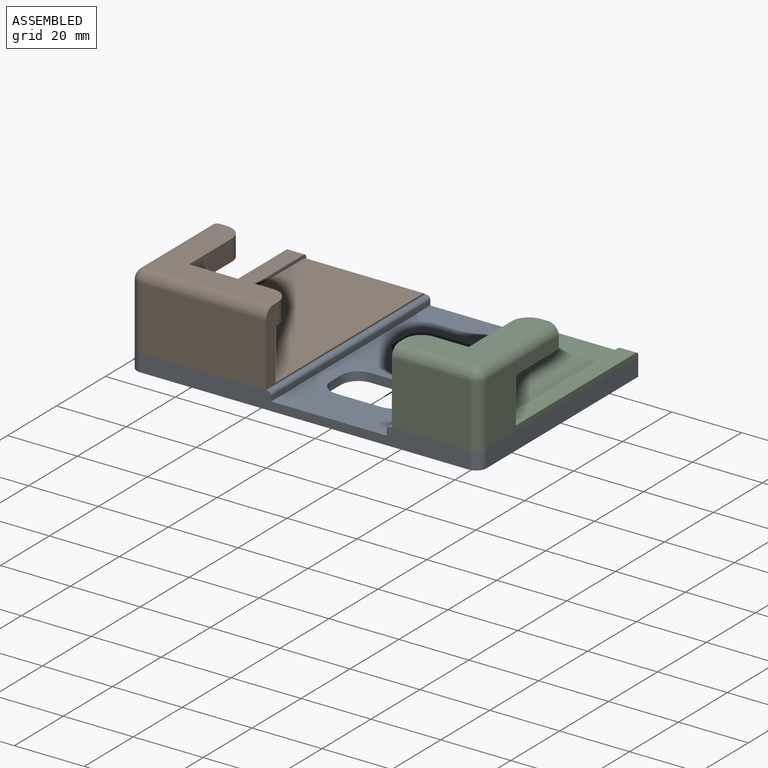
[diagram: assembled view]
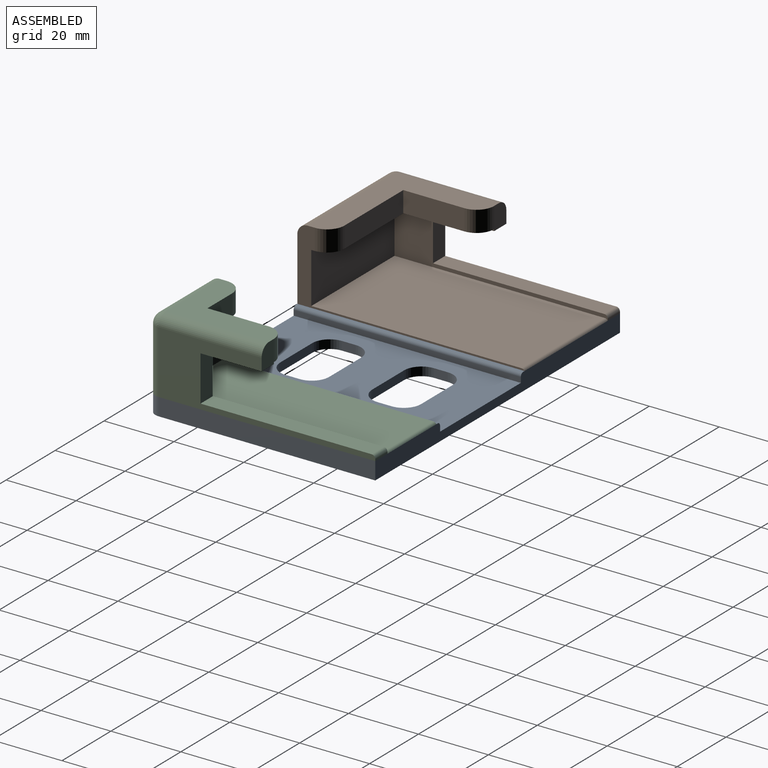
[diagram: assembled view, second angle]
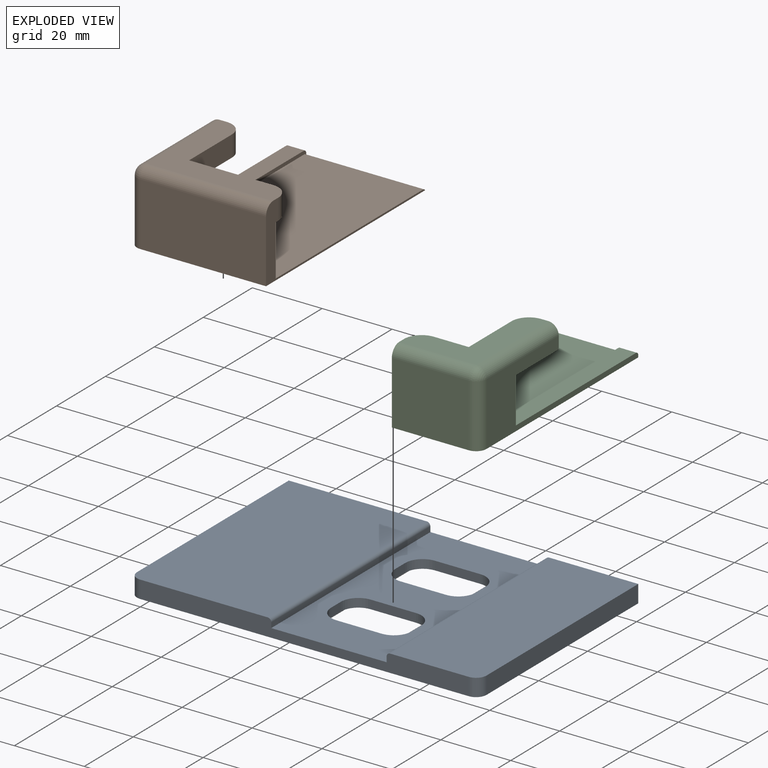
[diagram: exploded view]
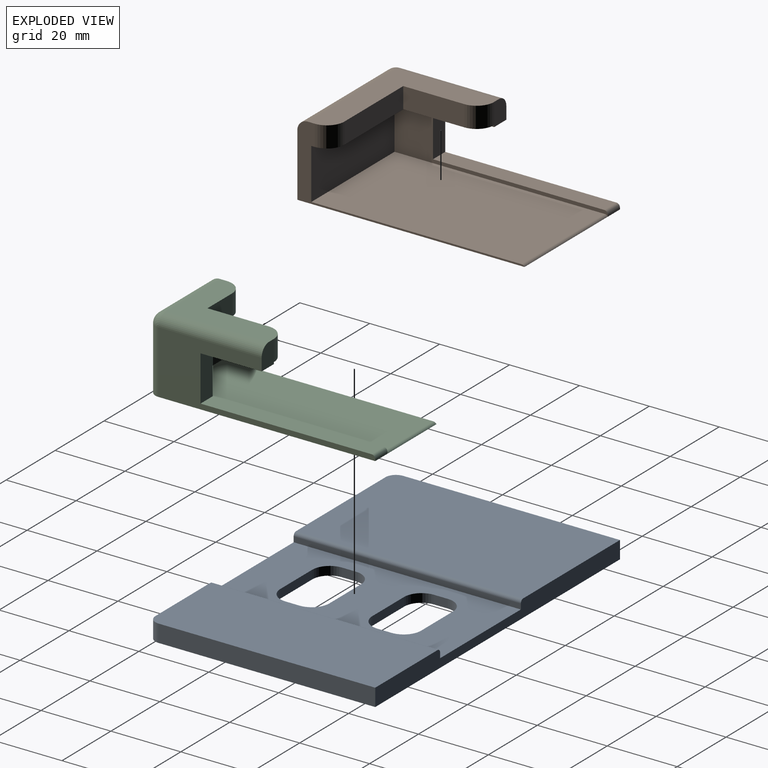
[diagram: exploded view, second angle]
ASSEMBLY  parts=3 mates=3
PART A: 30 faces, bbox 100x65x5 mm
  f0: plane 100x65mm, normal (0,0,1), area 5895.1mm2, adj f7,f8,f9,f11,f12,f13,f14,f15
  f1: plane 65x33mm, normal (0,0,-1), area 1543.9mm2, adj f2,f3,f8,f11,f12,f13,f14,f15
  f2: plane 65x1.5mm, normal (1,0,0), area 97.5mm2, adj f1,f4,f8,f27
  f3: plane 65x1.5mm, normal (-1,0,0), area 97.5mm2, adj f1,f5,f8,f27
  f4: cylinder r=1mm len=65mm, axis (0,1,0), area 102.1mm2, adj f2,f6,f8,f27
  f5: cylinder r=1mm len=65mm, axis (0,-1,0), area 102.1mm2, adj f3,f8,f10,f27
  f6: plane 65x25.5mm, normal (0,0,-1), area 1655.6mm2, adj f4,f7,f8,f27,f28
  f7: plane 62x5mm, normal (-1,0,0), area 310mm2, adj f0,f6,f27,f28
  f8: plane 94x5mm, normal (0,-1,0), area 387.1mm2, adj f0,f1,f2,f3,f4,f5,f6,f10
  f9: plane 62x5mm, normal (1,0,0), area 310mm2, adj f0,f10,f27,f29
  f10: plane 65x39.5mm, normal (0,0,-1), area 2565.6mm2, adj f5,f8,f9,f27,f29
  f11: plane 4x2.5mm, normal (1,0,0), area 10mm2, adj f0,f1,f12,f18
  f12: cylinder r=5mm len=5mm, axis (0,0,-1), area 19.6mm2, adj f0,f1,f11,f13
  f13: plane 13x2.5mm, normal (0,-1,0), area 32.5mm2, adj f0,f1,f12,f14
  f14: cylinder r=5mm len=5mm, axis (0,0,-1), area 19.6mm2, adj f0,f1,f13,f15
  f15: plane 4x2.5mm, normal (-1,0,0), area 10mm2, adj f0,f1,f14,f16
  f16: cylinder r=5mm len=5mm, axis (0,0,-1), area 19.6mm2, adj f0,f1,f15,f17
  f17: plane 13x2.5mm, normal (0,1,0), area 32.5mm2, adj f0,f1,f16,f18
  f18: cylinder r=5mm len=5mm, axis (0,0,-1), area 19.6mm2, adj f0,f1,f11,f17
  f19: plane 4x2.5mm, normal (1,0,0), area 10mm2, adj f0,f1,f20,f26
  f20: cylinder r=5mm len=5mm, axis (0,0,-1), area 19.6mm2, adj f0,f1,f19,f21
  f21: plane 13x2.5mm, normal (0,-1,0), area 32.5mm2, adj f0,f1,f20,f22
  f22: cylinder r=5mm len=5mm, axis (0,0,-1), area 19.6mm2, adj f0,f1,f21,f23
  f23: plane 4x2.5mm, normal (-1,0,0), area 10mm2, adj f0,f1,f22,f24
  f24: cylinder r=5mm len=5mm, axis (0,0,-1), area 19.6mm2, adj f0,f1,f23,f25
  f25: plane 13x2.5mm, normal (0,1,0), area 32.5mm2, adj f0,f1,f24,f26
  f26: cylinder r=5mm len=5mm, axis (0,0,-1), area 19.6mm2, adj f0,f1,f19,f25
  f27: plane 100x5mm, normal (0,1,0), area 417.1mm2, adj f0,f1,f2,f3,f4,f5,f6,f7
  f28: cylinder r=3mm len=5mm, axis (0,0,-1), area 23.6mm2, adj f0,f6,f7,f8
  f29: cylinder r=3mm len=5mm, axis (0,0,1), area 23.6mm2, adj f0,f8,f9,f10
PART B: 24 faces, bbox 39x65x21 mm
  f0: plane 5x0.5mm, normal (0,1,0), area 2.5mm2, adj f7,f8,f17,f18
  f1: plane 65x21mm, normal (1,0,0), area 118.4mm2, adj f3,f4,f5,f6,f10,f16,f17,f19
  f2: plane 24x6mm, normal (0,1,0), area 144mm2, adj f3,f5,f9,f16
  f3: plane 36x29.5mm, normal (0,0,1), area 398.8mm2, adj f1,f2,f9,f14,f15,f16,f20,f21
  f4: plane 60.13x34mm, normal (0,0,1), area 2044.6mm2, adj f1,f6,f8,f19
  f5: plane 34x28.5mm, normal (0,0,-1), area 305.8mm2, adj f1,f2,f6,f8,f9,f15,f16
  f6: plane 34x14.5mm, normal (0,1,0), area 493mm2, adj f1,f4,f5,f8
  f7: plane 62x18mm, normal (-1,0,0), area 352mm2, adj f0,f11,f12,f13,f14,f17,f18,f20
  f8: plane 61x15mm, normal (1,0,0), area 218.2mm2, adj f0,f4,f5,f6,f11,f12,f13,f14
  f9: plane 17.5x6mm, normal (1,0,0), area 105mm2, adj f2,f3,f5,f15
  f10: plane 36x18mm, normal (0,-1,0), area 648mm2, adj f1,f17,f21,f23
  f11: plane 13x5mm, normal (0,1,0), area 65mm2, adj f7,f8,f12,f13
  f12: plane 49x5mm, normal (0,0,1), area 245mm2, adj f7,f8,f11,f18
  f13: plane 17.5x5mm, normal (0,0,-1), area 87.5mm2, adj f7,f8,f11,f14
  f14: plane 6.5x5mm, normal (0,1,0), area 30.6mm2, adj f3,f7,f8,f13,f15,f20
  f15: cylinder r=5mm len=6mm, axis (0,0,1), area 47.1mm2, adj f3,f5,f9,f14
  f16: cylinder r=5mm len=6mm, axis (0,0,-1), area 47.1mm2, adj f1,f2,f3,f5
  f17: plane 65x39mm, normal (0,0,-1), area 2533.1mm2, adj f0,f1,f7,f10,f19,f23
  f18: cylinder r=1mm len=5mm, axis (1,0,0), area 7.9mm2, adj f0,f7,f8,f12
  f19: cylinder r=1mm len=34mm, axis (-1,0,0), area 35.6mm2, adj f1,f4,f8,f17
  f20: cylinder r=3mm len=29.5mm, axis (0,1,0), area 139mm2, adj f3,f7,f14,f22
  f21: cylinder r=3mm len=36mm, axis (-1,0,0), area 169.6mm2, adj f1,f3,f10,f22
  f22: sphere r=3mm, area 14.1mm2, adj f20,f21,f23
  f23: cylinder r=3mm len=18mm, axis (0,0,-1), area 84.8mm2, adj f7,f10,f17,f22
PART C: 24 faces, bbox 25x65x21 mm
  f0: plane 5x0.5mm, normal (0,1,0), area 2.5mm2, adj f5,f9,f17,f19
  f1: plane 65x21mm, normal (-1,0,0), area 118.4mm2, adj f10,f11,f12,f14,f15,f16,f17,f18
  f2: plane 13x5mm, normal (0,1,0), area 65mm2, adj f3,f5,f6,f9
  f3: plane 17.5x5mm, normal (0,0,-1), area 87.5mm2, adj f2,f4,f5,f9
  f4: plane 6.5x5mm, normal (0,1,0), area 30.6mm2, adj f3,f5,f7,f9,f14,f20
  f5: plane 62x18mm, normal (1,0,0), area 352mm2, adj f0,f2,f3,f4,f6,f17,f19,f20
  f6: plane 49x5mm, normal (0,0,1), area 245mm2, adj f2,f5,f9,f19
  f7: cylinder r=5mm len=6mm, axis (0,0,-1), area 47.1mm2, adj f4,f8,f11,f14
  f8: plane 17.5x6mm, normal (-1,0,0), area 105mm2, adj f7,f11,f13,f14
  f9: plane 61x15mm, normal (-1,0,0), area 218.2mm2, adj f0,f2,f3,f4,f6,f10,f11,f12
  f10: plane 20x14.5mm, normal (0,1,0), area 290mm2, adj f1,f9,f11,f12
  f11: plane 28.5x20mm, normal (0,0,-1), area 221.8mm2, adj f1,f7,f8,f9,f10,f13,f16
  f12: plane 60.13x20mm, normal (0,0,1), area 1202.7mm2, adj f1,f9,f10,f18
  f13: plane 10x6mm, normal (0,1,0), area 60mm2, adj f8,f11,f14,f16
  f14: plane 29.5x22mm, normal (0,0,1), area 300.8mm2, adj f1,f4,f7,f8,f13,f16,f20,f23
  f15: plane 22x18mm, normal (0,-1,0), area 396mm2, adj f1,f17,f21,f23
  f16: cylinder r=5mm len=6mm, axis (0,0,1), area 47.1mm2, adj f1,f11,f13,f14
  f17: plane 65x25mm, normal (0,0,-1), area 1623.1mm2, adj f0,f1,f5,f15,f18,f21
  f18: cylinder r=1mm len=20mm, axis (-1,0,0), area 20.9mm2, adj f1,f9,f12,f17
  f19: cylinder r=1mm len=5mm, axis (1,0,0), area 7.9mm2, adj f0,f5,f6,f9
  f20: cylinder r=3mm len=29.5mm, axis (0,-1,0), area 139mm2, adj f4,f5,f14,f22
  f21: cylinder r=3mm len=18mm, axis (0,0,1), area 84.8mm2, adj f5,f15,f17,f22
  f22: sphere r=3mm, area 14.1mm2, adj f20,f21,f23
  f23: cylinder r=3mm len=22mm, axis (-1,0,0), area 103.7mm2, adj f1,f14,f15,f22
PLACE A rot(axis=(0,1,0),180deg) t=(26.74,80.35,72.32)mm
PLACE B t=(26.74,40.35,68.32)mm
PLACE C t=(26.74,40.35,68.32)mm
MATE planar A.f6 <-> C.f17  axis (0,0,1) through (76.74,105.35,72.32)mm
MATE planar B.f17 <-> A.f10  axis (0,0,-1) through (-23.26,105.35,72.32)mm
MATE planar A.f10 <-> B.f17  axis (0,0,1) through (-23.26,105.35,72.32)mm
